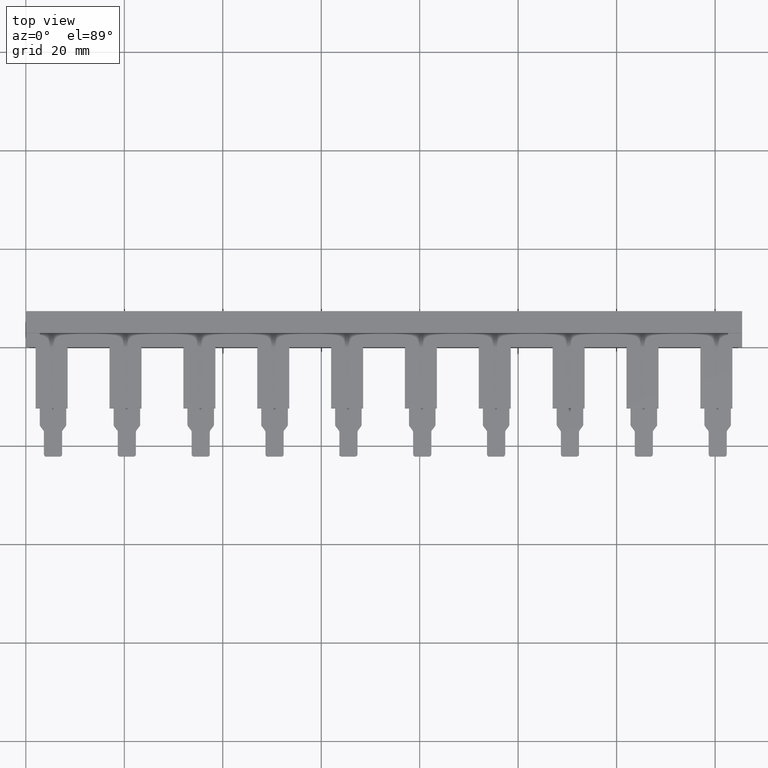
[diagram: clean part render]
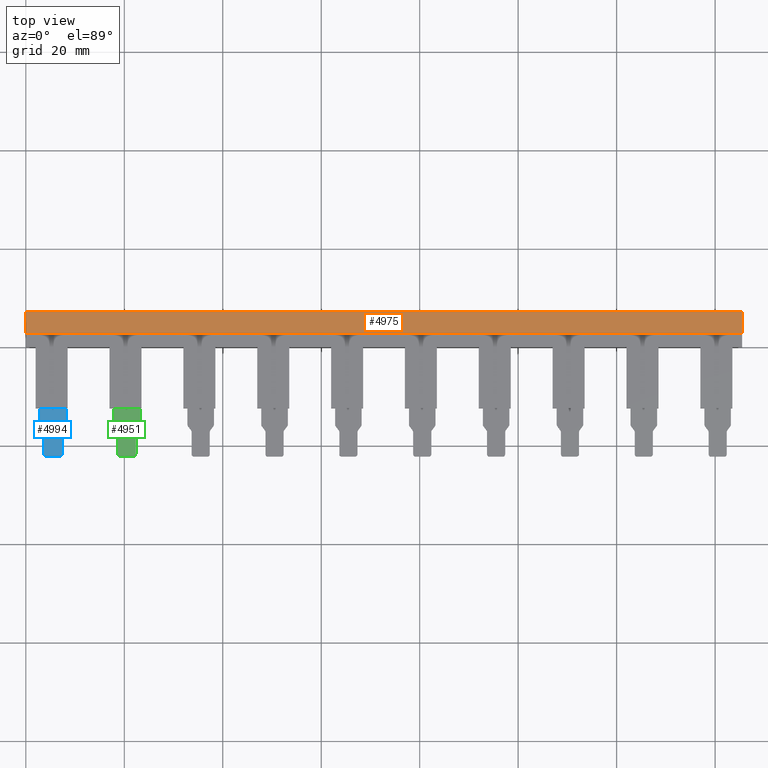
[diagram: same view with three faces highlighted in distinct colors, each labeled with its STEP entity id]
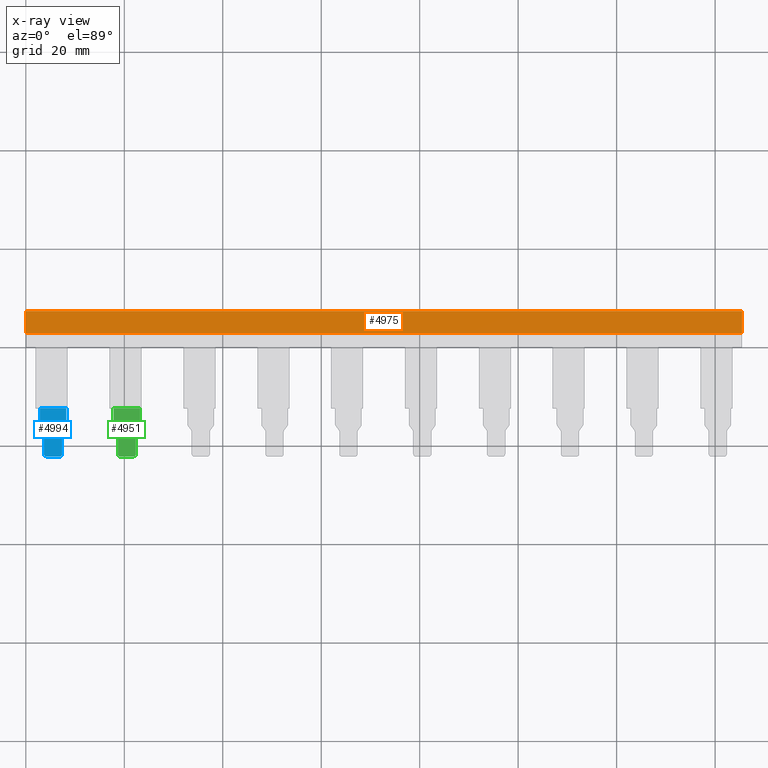
[diagram: x-ray of the same camera — body ghosted, the three highlighted faces saturated]
A machine part, top view with three faces highlighted in distinct colors.
The next image is the same camera in x-ray (body ghosted, the three faces saturated) — at least one of them is partly hidden behind the body in this view.
Their STEP definitions:

[orange] entity #4975 — the highlighted planar face has unit normal (0, 0, 1).
#25 = AXIS2_PLACEMENT_3D ( 'NONE', #2324, #2357, #2309 ) ;
#195 = VECTOR ( 'NONE', #2323, 1000.000000000000000 ) ;
#204 = VECTOR ( 'NONE', #3160, 1000.000000000000000 ) ;
#242 = VECTOR ( 'NONE', #3255, 1000.000000000000000 ) ;
#259 = VECTOR ( 'NONE', #3330, 1000.000000000000000 ) ;
#1004 = EDGE_LOOP ( 'NONE', ( #4275, #4335, #4306, #4290 ) ) ;
#1553 = CARTESIAN_POINT ( 'NONE',  ( 0.0000000000000000000, 7.300000000000000700, 4.799999999999999800 ) ) ;
#1605 = CARTESIAN_POINT ( 'NONE',  ( 145.5000000000000000, 2.799999999999996700, 4.799999999999999800 ) ) ;
#1627 = CARTESIAN_POINT ( 'NONE',  ( 0.0000000000000000000, 2.799999999999996700, 4.799999999999999800 ) ) ;
#1630 = CARTESIAN_POINT ( 'NONE',  ( 145.5000000000000000, 7.300000000000000700, 4.799999999999999800 ) ) ;
#2248 = LINE ( 'NONE', #2258, #195 ) ;
#2258 = CARTESIAN_POINT ( 'NONE',  ( 40.50000000000000000, 7.300000000000000700, 4.799999999999999800 ) ) ;
#2309 = DIRECTION ( 'NONE',  ( 1.000000000000000000, 0.0000000000000000000, -0.0000000000000000000 ) ) ;
#2323 = DIRECTION ( 'NONE',  ( -1.000000000000000000, 0.0000000000000000000, 0.0000000000000000000 ) ) ;
#2324 = CARTESIAN_POINT ( 'NONE',  ( 40.50000000000000000, 7.300000000000000700, 4.799999999999999800 ) ) ;
#2336 = PLANE ( 'NONE',  #25 ) ;
#2348 = FACE_OUTER_BOUND ( 'NONE', #1004, .T. ) ;
#2357 = DIRECTION ( 'NONE',  ( 0.0000000000000000000, 0.0000000000000000000, 1.000000000000000000 ) ) ;
#3153 = LINE ( 'NONE', #3171, #204 ) ;
#3160 = DIRECTION ( 'NONE',  ( 1.000000000000000000, 0.0000000000000000000, 0.0000000000000000000 ) ) ;
#3171 = CARTESIAN_POINT ( 'NONE',  ( 15.00000000000000000, 2.799999999999996700, 4.799999999999999800 ) ) ;
#3255 = DIRECTION ( 'NONE',  ( -2.409338161078896300E-017, -1.000000000000000000, 0.0000000000000000000 ) ) ;
#3262 = LINE ( 'NONE', #3268, #242 ) ;
#3268 = CARTESIAN_POINT ( 'NONE',  ( 0.0000000000000000000, 7.300000000000000700, 4.799999999999999800 ) ) ;
#3312 = LINE ( 'NONE', #3329, #259 ) ;
#3329 = CARTESIAN_POINT ( 'NONE',  ( 145.5000000000000000, 2.799999999999996700, 4.799999999999999800 ) ) ;
#3330 = DIRECTION ( 'NONE',  ( -7.709882115452468300E-016, 1.000000000000000000, 0.0000000000000000000 ) ) ;
#4275 = ORIENTED_EDGE ( 'NONE', *, *, #5141, .T. ) ;
#4290 = ORIENTED_EDGE ( 'NONE', *, *, #5165, .T. ) ;
#4306 = ORIENTED_EDGE ( 'NONE', *, *, #5148, .T. ) ;
#4335 = ORIENTED_EDGE ( 'NONE', *, *, #5188, .T. ) ;
#4589 = VERTEX_POINT ( 'NONE', #1553 ) ;
#4644 = VERTEX_POINT ( 'NONE', #1630 ) ;
#4653 = VERTEX_POINT ( 'NONE', #1627 ) ;
#4654 = VERTEX_POINT ( 'NONE', #1605 ) ;
#4975 = ADVANCED_FACE ( 'NONE', ( #2348 ), #2336, .T. ) ;
#5141 = EDGE_CURVE ( 'NONE', #4653, #4654, #3153, .T. ) ;
#5148 = EDGE_CURVE ( 'NONE', #4644, #4589, #2248, .T. ) ;
#5165 = EDGE_CURVE ( 'NONE', #4589, #4653, #3262, .T. ) ;
#5188 = EDGE_CURVE ( 'NONE', #4654, #4644, #3312, .T. ) ;

[blue] entity #4994 — the highlighted planar face has unit normal (-0, 0, -1).
#114 = AXIS2_PLACEMENT_3D ( 'NONE', #2449, #2455, #2441 ) ;
#385 = AXIS2_PLACEMENT_3D ( 'NONE', #3826, #3847, #3846 ) ;
#394 = VECTOR ( 'NONE', #3731, 1000.000000000000000 ) ;
#414 = CIRCLE ( 'NONE', #385, 0.4999999999998894200 ) ;
#422 = VECTOR ( 'NONE', #3803, 1000.000000000000000 ) ;
#428 = VECTOR ( 'NONE', #3738, 1000.000000000000000 ) ;
#441 = AXIS2_PLACEMENT_3D ( 'NONE', #3890, #3868, #3877 ) ;
#445 = CIRCLE ( 'NONE', #448, 0.4999999999999770200 ) ;
#448 = AXIS2_PLACEMENT_3D ( 'NONE', #3881, #3861, #3895 ) ;
#450 = CIRCLE ( 'NONE', #491, 0.4999999999999783500 ) ;
#452 = VECTOR ( 'NONE', #3834, 1000.000000000000000 ) ;
#455 = AXIS2_PLACEMENT_3D ( 'NONE', #3863, #3857, #3872 ) ;
#463 = CIRCLE ( 'NONE', #478, 0.5000000000000338600 ) ;
#472 = VECTOR ( 'NONE', #3860, 1000.000000000000000 ) ;
#476 = VECTOR ( 'NONE', #3839, 1000.000000000000000 ) ;
#477 = CIRCLE ( 'NONE', #441, 0.5000000000000784900 ) ;
#478 = AXIS2_PLACEMENT_3D ( 'NONE', #3938, #3927, #3912 ) ;
#479 = CIRCLE ( 'NONE', #455, 0.4999999999998894200 ) ;
#485 = VECTOR ( 'NONE', #3880, 1000.000000000000100 ) ;
#491 = AXIS2_PLACEMENT_3D ( 'NONE', #3893, #3858, #3870 ) ;
#570 = VECTOR ( 'NONE', #4112, 1000.000000000000000 ) ;
#1040 = EDGE_LOOP ( 'NONE', ( #1966, #2013, #1982, #1954, #1934, #2025, #1984, #2042, #1971, #1932, #1973, #1939, #2026, #1936 ) ) ;
#1615 = CARTESIAN_POINT ( 'NONE',  ( 3.575000000000561100, -16.86666666666704400, 2.949999999998415700 ) ) ;
#1667 = CARTESIAN_POINT ( 'NONE',  ( 2.925000000000415000, -16.00000000000053300, 2.949999999998440500 ) ) ;
#1687 = CARTESIAN_POINT ( 'NONE',  ( 3.675000000000629100, -17.16666666666713700, 2.949999999998390400 ) ) ;
#1698 = CARTESIAN_POINT ( 'NONE',  ( 2.825000000000410500, -15.70000000000045900, 2.949999999998444500 ) ) ;
#1701 = CARTESIAN_POINT ( 'NONE',  ( 7.465000000001314400, -16.86666666666664200, 2.949999999998091500 ) ) ;
#1708 = CARTESIAN_POINT ( 'NONE',  ( 6.865000000001626500, -22.19999999999998500, 2.949999999998138100 ) ) ;
#1709 = CARTESIAN_POINT ( 'NONE',  ( 3.675000000000518100, -21.70000000000029800, 2.949999999998345100 ) ) ;
#1741 = CARTESIAN_POINT ( 'NONE',  ( 2.825000000000410500, -12.40000000000000400, 2.949999999998447600 ) ) ;
#1742 = CARTESIAN_POINT ( 'NONE',  ( 8.215000000001589700, -15.70000000000001500, 2.949999999998034200 ) ) ;
#1751 = CARTESIAN_POINT ( 'NONE',  ( 8.115000000001579400, -16.00000000000011000, 2.949999999998067100 ) ) ;
#1757 = CARTESIAN_POINT ( 'NONE',  ( 7.365000000001349400, -17.16666666666669300, 2.949999999998099000 ) ) ;
#1782 = CARTESIAN_POINT ( 'NONE',  ( 8.215000000001589700, -12.40000000000000200, 2.949999999998034200 ) ) ;
#1793 = CARTESIAN_POINT ( 'NONE',  ( 7.365000000001460400, -21.69999999999985400, 2.949999999998099900 ) ) ;
#1801 = CARTESIAN_POINT ( 'NONE',  ( 4.175000000000372900, -22.19999999999993900, 2.949999999998345100 ) ) ;
#1932 = ORIENTED_EDGE ( 'NONE', *, *, #5319, .T. ) ;
#1934 = ORIENTED_EDGE ( 'NONE', *, *, #5344, .F. ) ;
#1936 = ORIENTED_EDGE ( 'NONE', *, *, #5331, .T. ) ;
#1939 = ORIENTED_EDGE ( 'NONE', *, *, #5440, .T. ) ;
#1954 = ORIENTED_EDGE ( 'NONE', *, *, #5317, .F. ) ;
#1966 = ORIENTED_EDGE ( 'NONE', *, *, #5376, .T. ) ;
#1971 = ORIENTED_EDGE ( 'NONE', *, *, #5357, .F. ) ;
#1973 = ORIENTED_EDGE ( 'NONE', *, *, #5346, .T. ) ;
#1982 = ORIENTED_EDGE ( 'NONE', *, *, #5359, .F. ) ;
#1984 = ORIENTED_EDGE ( 'NONE', *, *, #5364, .T. ) ;
#2013 = ORIENTED_EDGE ( 'NONE', *, *, #5362, .F. ) ;
#2025 = ORIENTED_EDGE ( 'NONE', *, *, #5356, .F. ) ;
#2026 = ORIENTED_EDGE ( 'NONE', *, *, #5366, .F. ) ;
#2042 = ORIENTED_EDGE ( 'NONE', *, *, #5369, .T. ) ;
#2415 = FACE_OUTER_BOUND ( 'NONE', #1040, .T. ) ;
#2441 = DIRECTION ( 'NONE',  ( -1.000000000000000000, 0.0000000000000000000, 7.679967772844520400E-014 ) ) ;
#2445 = PLANE ( 'NONE',  #114 ) ;
#2449 = CARTESIAN_POINT ( 'NONE',  ( 8.715000000001644800, 0.9500000000000934400, 2.949999999997995600 ) ) ;
#2455 = DIRECTION ( 'NONE',  ( -7.679967772844520400E-014, 0.0000000000000000000, -1.000000000000000000 ) ) ;
#3731 = DIRECTION ( 'NONE',  ( 0.0000000000000000000, 1.000000000000000000, -0.0000000000000000000 ) ) ;
#3735 = CARTESIAN_POINT ( 'NONE',  ( 8.215000000001589700, -17.35000000000009700, 2.949999999998034200 ) ) ;
#3738 = DIRECTION ( 'NONE',  ( -1.000000000000000000, 0.0000000000000000000, 7.679967772844520400E-014 ) ) ;
#3744 = LINE ( 'NONE', #3735, #394 ) ;
#3748 = CARTESIAN_POINT ( 'NONE',  ( 8.715000000001644800, -22.19999999999974300, 2.949999999997995600 ) ) ;
#3760 = LINE ( 'NONE', #3748, #428 ) ;
#3779 = LINE ( 'NONE', #3804, #422 ) ;
#3803 = DIRECTION ( 'NONE',  ( 0.6000000000001557400, -0.7999999999998831400, -0.0000000000000000000 ) ) ;
#3804 = CARTESIAN_POINT ( 'NONE',  ( 2.925000000000399500, -16.00000000000053600, 2.949999999998440500 ) ) ;
#3826 = CARTESIAN_POINT ( 'NONE',  ( 6.865000000001626500, -21.69999999999985400, 2.949999999998138100 ) ) ;
#3831 = LINE ( 'NONE', #3833, #452 ) ;
#3833 = CARTESIAN_POINT ( 'NONE',  ( 7.365000000001349400, 0.9500000000000934400, 2.949999999998099000 ) ) ;
#3834 = DIRECTION ( 'NONE',  ( -0.0000000000000000000, -1.000000000000000000, -0.0000000000000000000 ) ) ;
#3837 = LINE ( 'NONE', #3838, #476 ) ;
#3838 = CARTESIAN_POINT ( 'NONE',  ( 8.499999999999913000, -12.40000000000000200, 2.949999999998012000 ) ) ;
#3839 = DIRECTION ( 'NONE',  ( -1.000000000000000000, -2.668805347656626200E-016, 7.679967772844520400E-014 ) ) ;
#3846 = DIRECTION ( 'NONE',  ( 1.000000000000000000, 0.0000000000000000000, -7.719519468098499300E-014 ) ) ;
#3847 = DIRECTION ( 'NONE',  ( -7.679967772844520400E-014, -0.0000000000000000000, -1.000000000000000000 ) ) ;
#3857 = DIRECTION ( 'NONE',  ( -0.0000000000000000000, -0.0000000000000000000, -1.000000000000000000 ) ) ;
#3858 = DIRECTION ( 'NONE',  ( -0.0000000000000000000, -0.0000000000000000000, -1.000000000000000000 ) ) ;
#3860 = DIRECTION ( 'NONE',  ( 0.0000000000000000000, 1.000000000000000000, 0.0000000000000000000 ) ) ;
#3861 = DIRECTION ( 'NONE',  ( -7.679967772844520400E-014, -0.0000000000000000000, -1.000000000000000000 ) ) ;
#3862 = CARTESIAN_POINT ( 'NONE',  ( 3.374586302484610600, -22.32055159668577100, 2.949999999998093300 ) ) ;
#3863 = CARTESIAN_POINT ( 'NONE',  ( 4.175000000000372900, -21.70000000000029800, 2.949999999998345100 ) ) ;
#3868 = DIRECTION ( 'NONE',  ( -7.679967772844520400E-014, -0.0000000000000000000, -1.000000000000000000 ) ) ;
#3870 = DIRECTION ( 'NONE',  ( -1.000000000000000000, 0.0000000000000000000, 0.0000000000000000000 ) ) ;
#3871 = CARTESIAN_POINT ( 'NONE',  ( 3.675000000000608200, 0.9500000000000934400, 2.949999999998382800 ) ) ;
#3872 = DIRECTION ( 'NONE',  ( -1.000000000000000000, 0.0000000000000000000, 0.0000000000000000000 ) ) ;
#3875 = LINE ( 'NONE', #3871, #472 ) ;
#3877 = DIRECTION ( 'NONE',  ( 1.000000000000000000, -6.938893903906139000E-015, -7.719519468095579900E-014 ) ) ;
#3879 = LINE ( 'NONE', #3862, #485 ) ;
#3880 = DIRECTION ( 'NONE',  ( 0.6000000000002213600, 0.7999999999998339600, -0.0000000000000000000 ) ) ;
#3881 = CARTESIAN_POINT ( 'NONE',  ( 7.715000000001643000, -15.70000000000001500, 2.949999999998072400 ) ) ;
#3890 = CARTESIAN_POINT ( 'NONE',  ( 7.865000000001405300, -17.16666666666669300, 2.949999999998060800 ) ) ;
#3893 = CARTESIAN_POINT ( 'NONE',  ( 3.325000000000355400, -15.70000000000045900, 2.949999999998440500 ) ) ;
#3895 = DIRECTION ( 'NONE',  ( 1.000000000000000000, 0.0000000000000000000, -7.719519468097146200E-014 ) ) ;
#3912 = DIRECTION ( 'NONE',  ( -1.000000000000000000, 0.0000000000000000000, 0.0000000000000000000 ) ) ;
#3927 = DIRECTION ( 'NONE',  ( -0.0000000000000000000, -0.0000000000000000000, -1.000000000000000000 ) ) ;
#3938 = CARTESIAN_POINT ( 'NONE',  ( 3.175000000000594000, -17.16666666666713700, 2.949999999998390400 ) ) ;
#4072 = LINE ( 'NONE', #4105, #570 ) ;
#4105 = CARTESIAN_POINT ( 'NONE',  ( 2.825000000000410500, -15.70000000000045900, 2.949999999998447600 ) ) ;
#4112 = DIRECTION ( 'NONE',  ( -0.0000000000000000000, -1.000000000000000000, -0.0000000000000000000 ) ) ;
#4658 = VERTEX_POINT ( 'NONE', #1615 ) ;
#4662 = VERTEX_POINT ( 'NONE', #1667 ) ;
#4674 = VERTEX_POINT ( 'NONE', #1708 ) ;
#4686 = VERTEX_POINT ( 'NONE', #1687 ) ;
#4688 = VERTEX_POINT ( 'NONE', #1709 ) ;
#4706 = VERTEX_POINT ( 'NONE', #1698 ) ;
#4712 = VERTEX_POINT ( 'NONE', #1701 ) ;
#4736 = VERTEX_POINT ( 'NONE', #1742 ) ;
#4752 = VERTEX_POINT ( 'NONE', #1741 ) ;
#4763 = VERTEX_POINT ( 'NONE', #1801 ) ;
#4769 = VERTEX_POINT ( 'NONE', #1782 ) ;
#4772 = VERTEX_POINT ( 'NONE', #1793 ) ;
#4784 = VERTEX_POINT ( 'NONE', #1751 ) ;
#4807 = VERTEX_POINT ( 'NONE', #1757 ) ;
#4994 = ADVANCED_FACE ( 'NONE', ( #2415 ), #2445, .F. ) ;
#5317 = EDGE_CURVE ( 'NONE', #4674, #4763, #3760, .T. ) ;
#5319 = EDGE_CURVE ( 'NONE', #4736, #4769, #3744, .T. ) ;
#5331 = EDGE_CURVE ( 'NONE', #4662, #4658, #3779, .T. ) ;
#5344 = EDGE_CURVE ( 'NONE', #4772, #4674, #414, .T. ) ;
#5346 = EDGE_CURVE ( 'NONE', #4769, #4752, #3837, .T. ) ;
#5356 = EDGE_CURVE ( 'NONE', #4807, #4772, #3831, .T. ) ;
#5357 = EDGE_CURVE ( 'NONE', #4736, #4784, #445, .T. ) ;
#5359 = EDGE_CURVE ( 'NONE', #4763, #4688, #479, .T. ) ;
#5362 = EDGE_CURVE ( 'NONE', #4688, #4686, #3875, .T. ) ;
#5364 = EDGE_CURVE ( 'NONE', #4807, #4712, #477, .T. ) ;
#5366 = EDGE_CURVE ( 'NONE', #4662, #4706, #450, .T. ) ;
#5369 = EDGE_CURVE ( 'NONE', #4712, #4784, #3879, .T. ) ;
#5376 = EDGE_CURVE ( 'NONE', #4658, #4686, #463, .T. ) ;
#5440 = EDGE_CURVE ( 'NONE', #4752, #4706, #4072, .T. ) ;

[green] entity #4951 — the highlighted planar face has unit normal (-0, 0, -1).
#23 = AXIS2_PLACEMENT_3D ( 'NONE', #2213, #2233, #2207 ) ;
#324 = AXIS2_PLACEMENT_3D ( 'NONE', #3572, #3558, #3569 ) ;
#328 = CIRCLE ( 'NONE', #324, 0.5000000000000768300 ) ;
#333 = AXIS2_PLACEMENT_3D ( 'NONE', #3571, #3562, #3587 ) ;
#347 = VECTOR ( 'NONE', #3566, 1000.000000000000000 ) ;
#351 = CIRCLE ( 'NONE', #333, 0.4999999999998894200 ) ;
#379 = VECTOR ( 'NONE', #3725, 1000.000000000000000 ) ;
#391 = AXIS2_PLACEMENT_3D ( 'NONE', #3753, #3747, #3734 ) ;
#407 = CIRCLE ( 'NONE', #415, 0.4999999999998894200 ) ;
#411 = VECTOR ( 'NONE', #3775, 1000.000000000000000 ) ;
#415 = AXIS2_PLACEMENT_3D ( 'NONE', #3690, #3699, #3691 ) ;
#424 = VECTOR ( 'NONE', #3652, 1000.000000000000100 ) ;
#426 = CIRCLE ( 'NONE', #391, 0.5000000000000350800 ) ;
#431 = VECTOR ( 'NONE', #3778, 1000.000000000000000 ) ;
#443 = VECTOR ( 'NONE', #3842, 1000.000000000000000 ) ;
#444 = CIRCLE ( 'NONE', #471, 0.4999999999999796300 ) ;
#462 = VECTOR ( 'NONE', #3925, 1000.000000000000000 ) ;
#471 = AXIS2_PLACEMENT_3D ( 'NONE', #3825, #3853, #3814 ) ;
#481 = VECTOR ( 'NONE', #3939, 1000.000000000000000 ) ;
#484 = AXIS2_PLACEMENT_3D ( 'NONE', #3929, #3905, #3921 ) ;
#487 = CIRCLE ( 'NONE', #484, 0.4999999999999796300 ) ;
#973 = EDGE_LOOP ( 'NONE', ( #1974, #4557, #4573, #4558, #4570, #4559, #4544, #4532, #1977, #4555, #4561, #4553, #4512, #4522 ) ) ;
#1661 = CARTESIAN_POINT ( 'NONE',  ( 18.67500000000051600, -21.70000000000029400, 2.949999999998345100 ) ) ;
#1668 = CARTESIAN_POINT ( 'NONE',  ( 17.92500000000041300, -16.00000000000052900, 2.949999999998440500 ) ) ;
#1683 = CARTESIAN_POINT ( 'NONE',  ( 18.57500000000056400, -16.86666666666704000, 2.949999999998415700 ) ) ;
#1699 = CARTESIAN_POINT ( 'NONE',  ( 17.82500000000055000, -12.40000000000000200, 2.949999999998447600 ) ) ;
#1707 = CARTESIAN_POINT ( 'NONE',  ( 23.21500000000162300, -12.40000000000000200, 2.949999999998034200 ) ) ;
#1710 = CARTESIAN_POINT ( 'NONE',  ( 17.82500000000047900, -15.70000000000045600, 2.949999999998440500 ) ) ;
#1719 = CARTESIAN_POINT ( 'NONE',  ( 19.17500000000037700, -22.19999999999993500, 2.949999999998345100 ) ) ;
#1722 = CARTESIAN_POINT ( 'NONE',  ( 22.36500000000145900, -21.69999999999985000, 2.949999999998099900 ) ) ;
#1723 = CARTESIAN_POINT ( 'NONE',  ( 23.11500000000157900, -16.00000000000010300, 2.949999999998067100 ) ) ;
#1731 = CARTESIAN_POINT ( 'NONE',  ( 23.21500000000160600, -15.70000000000001200, 2.949999999998034200 ) ) ;
#1748 = CARTESIAN_POINT ( 'NONE',  ( 18.67500000000063000, -17.16666666666713300, 2.949999999998390400 ) ) ;
#1754 = CARTESIAN_POINT ( 'NONE',  ( 22.36500000000134800, -17.16666666666668900, 2.949999999998099000 ) ) ;
#1772 = CARTESIAN_POINT ( 'NONE',  ( 21.86500000000162600, -22.19999999999997800, 2.949999999998138100 ) ) ;
#1791 = CARTESIAN_POINT ( 'NONE',  ( 22.46500000000138200, -16.86666666666656800, 2.949999999998091900 ) ) ;
#1974 = ORIENTED_EDGE ( 'NONE', *, *, #5313, .T. ) ;
#1977 = ORIENTED_EDGE ( 'NONE', *, *, #5353, .F. ) ;
#2207 = DIRECTION ( 'NONE',  ( -1.000000000000000000, 0.0000000000000000000, 7.679967772844520400E-014 ) ) ;
#2213 = CARTESIAN_POINT ( 'NONE',  ( 23.71500000000164500, 0.9500000000000974300, 2.949999999997995600 ) ) ;
#2231 = PLANE ( 'NONE',  #23 ) ;
#2233 = DIRECTION ( 'NONE',  ( -7.679967772844520400E-014, 0.0000000000000000000, -1.000000000000000000 ) ) ;
#2243 = FACE_OUTER_BOUND ( 'NONE', #973, .T. ) ;
#3558 = DIRECTION ( 'NONE',  ( -7.679967772844520400E-014, -0.0000000000000000000, -1.000000000000000000 ) ) ;
#3562 = DIRECTION ( 'NONE',  ( -0.0000000000000000000, -0.0000000000000000000, -1.000000000000000000 ) ) ;
#3564 = LINE ( 'NONE', #3565, #347 ) ;
#3565 = CARTESIAN_POINT ( 'NONE',  ( 17.92500000000039900, -16.00000000000053300, 2.949999999998440500 ) ) ;
#3566 = DIRECTION ( 'NONE',  ( 0.6000000000001557400, -0.7999999999998831400, -0.0000000000000000000 ) ) ;
#3569 = DIRECTION ( 'NONE',  ( 1.000000000000000000, -6.938893903906161800E-015, -7.719519468095605100E-014 ) ) ;
#3571 = CARTESIAN_POINT ( 'NONE',  ( 19.17500000000037700, -21.70000000000029400, 2.949999999998345100 ) ) ;
#3572 = CARTESIAN_POINT ( 'NONE',  ( 22.86500000000140500, -17.16666666666668900, 2.949999999998060800 ) ) ;
#3587 = DIRECTION ( 'NONE',  ( -1.000000000000000000, 0.0000000000000000000, 0.0000000000000000000 ) ) ;
#3651 = LINE ( 'NONE', #3673, #424 ) ;
#3652 = DIRECTION ( 'NONE',  ( 0.6000000000002213600, 0.7999999999998339600, -0.0000000000000000000 ) ) ;
#3673 = CARTESIAN_POINT ( 'NONE',  ( 18.37458630248460900, -22.32055159668576700, 2.949999999998093300 ) ) ;
#3690 = CARTESIAN_POINT ( 'NONE',  ( 21.86500000000162600, -21.69999999999985000, 2.949999999998138100 ) ) ;
#3691 = DIRECTION ( 'NONE',  ( 1.000000000000000000, 0.0000000000000000000, -7.719519468098499300E-014 ) ) ;
#3699 = DIRECTION ( 'NONE',  ( -7.679967772844520400E-014, -0.0000000000000000000, -1.000000000000000000 ) ) ;
#3723 = LINE ( 'NONE', #3730, #379 ) ;
#3725 = DIRECTION ( 'NONE',  ( 0.0000000000000000000, 1.000000000000000000, 0.0000000000000000000 ) ) ;
#3730 = CARTESIAN_POINT ( 'NONE',  ( 18.67500000000060800, 0.9500000000000974300, 2.949999999998382800 ) ) ;
#3734 = DIRECTION ( 'NONE',  ( -1.000000000000000000, 0.0000000000000000000, 0.0000000000000000000 ) ) ;
#3747 = DIRECTION ( 'NONE',  ( -0.0000000000000000000, -0.0000000000000000000, -1.000000000000000000 ) ) ;
#3753 = CARTESIAN_POINT ( 'NONE',  ( 18.17500000000059400, -17.16666666666713300, 2.949999999998390400 ) ) ;
#3773 = LINE ( 'NONE', #3774, #411 ) ;
#3774 = CARTESIAN_POINT ( 'NONE',  ( 23.71500000000164500, -22.19999999999974000, 2.949999999997995600 ) ) ;
#3775 = DIRECTION ( 'NONE',  ( -1.000000000000000000, 0.0000000000000000000, 7.679967772844520400E-014 ) ) ;
#3778 = DIRECTION ( 'NONE',  ( -0.0000000000000000000, -1.000000000000000000, -0.0000000000000000000 ) ) ;
#3796 = CARTESIAN_POINT ( 'NONE',  ( 22.36500000000134800, 0.9500000000000974300, 2.949999999998099000 ) ) ;
#3811 = LINE ( 'NONE', #3796, #431 ) ;
#3814 = DIRECTION ( 'NONE',  ( 1.000000000000000000, 0.0000000000000000000, -7.719519468097105900E-014 ) ) ;
#3825 = CARTESIAN_POINT ( 'NONE',  ( 22.71500000000164800, -15.70000000000001200, 2.949999999998072400 ) ) ;
#3842 = DIRECTION ( 'NONE',  ( -0.0000000000000000000, -1.000000000000000000, -0.0000000000000000000 ) ) ;
#3845 = LINE ( 'NONE', #3849, #443 ) ;
#3849 = CARTESIAN_POINT ( 'NONE',  ( 23.21500000000162300, 0.9500000000000974300, 2.949999999998034200 ) ) ;
#3853 = DIRECTION ( 'NONE',  ( -7.679967772844520400E-014, -0.0000000000000000000, -1.000000000000000000 ) ) ;
#3905 = DIRECTION ( 'NONE',  ( -0.0000000000000000000, -0.0000000000000000000, -1.000000000000000000 ) ) ;
#3921 = DIRECTION ( 'NONE',  ( -1.000000000000000000, 0.0000000000000000000, 0.0000000000000000000 ) ) ;
#3923 = LINE ( 'NONE', #3933, #462 ) ;
#3925 = DIRECTION ( 'NONE',  ( 0.0000000000000000000, 1.000000000000000000, 0.0000000000000000000 ) ) ;
#3929 = CARTESIAN_POINT ( 'NONE',  ( 18.32500000000035500, -15.70000000000045600, 2.949999999998440500 ) ) ;
#3930 = CARTESIAN_POINT ( 'NONE',  ( 17.00000000000029100, -12.40000000000000200, 2.949999999998511100 ) ) ;
#3932 = LINE ( 'NONE', #3930, #481 ) ;
#3933 = CARTESIAN_POINT ( 'NONE',  ( 17.82500000000055000, 0.9500000000000974300, 2.949999999998447600 ) ) ;
#3939 = DIRECTION ( 'NONE',  ( 1.000000000000000000, 0.0000000000000000000, -7.679967772844520400E-014 ) ) ;
#4512 = ORIENTED_EDGE ( 'NONE', *, *, #5377, .F. ) ;
#4522 = ORIENTED_EDGE ( 'NONE', *, *, #5267, .T. ) ;
#4532 = ORIENTED_EDGE ( 'NONE', *, *, #5296, .T. ) ;
#4544 = ORIENTED_EDGE ( 'NONE', *, *, #5255, .T. ) ;
#4553 = ORIENTED_EDGE ( 'NONE', *, *, #5373, .F. ) ;
#4555 = ORIENTED_EDGE ( 'NONE', *, *, #5352, .F. ) ;
#4557 = ORIENTED_EDGE ( 'NONE', *, *, #5325, .F. ) ;
#4558 = ORIENTED_EDGE ( 'NONE', *, *, #5341, .F. ) ;
#4559 = ORIENTED_EDGE ( 'NONE', *, *, #5342, .F. ) ;
#4561 = ORIENTED_EDGE ( 'NONE', *, *, #5379, .F. ) ;
#4570 = ORIENTED_EDGE ( 'NONE', *, *, #5311, .F. ) ;
#4573 = ORIENTED_EDGE ( 'NONE', *, *, #5263, .F. ) ;
#4659 = VERTEX_POINT ( 'NONE', #1683 ) ;
#4666 = VERTEX_POINT ( 'NONE', #1668 ) ;
#4683 = VERTEX_POINT ( 'NONE', #1707 ) ;
#4705 = VERTEX_POINT ( 'NONE', #1661 ) ;
#4709 = VERTEX_POINT ( 'NONE', #1699 ) ;
#4723 = VERTEX_POINT ( 'NONE', #1748 ) ;
#4740 = VERTEX_POINT ( 'NONE', #1722 ) ;
#4742 = VERTEX_POINT ( 'NONE', #1719 ) ;
#4746 = VERTEX_POINT ( 'NONE', #1731 ) ;
#4748 = VERTEX_POINT ( 'NONE', #1723 ) ;
#4751 = VERTEX_POINT ( 'NONE', #1710 ) ;
#4761 = VERTEX_POINT ( 'NONE', #1791 ) ;
#4779 = VERTEX_POINT ( 'NONE', #1772 ) ;
#4780 = VERTEX_POINT ( 'NONE', #1754 ) ;
#4951 = ADVANCED_FACE ( 'NONE', ( #2243 ), #2231, .F. ) ;
#5255 = EDGE_CURVE ( 'NONE', #4780, #4761, #328, .T. ) ;
#5263 = EDGE_CURVE ( 'NONE', #4742, #4705, #351, .T. ) ;
#5267 = EDGE_CURVE ( 'NONE', #4666, #4659, #3564, .T. ) ;
#5296 = EDGE_CURVE ( 'NONE', #4761, #4748, #3651, .T. ) ;
#5311 = EDGE_CURVE ( 'NONE', #4740, #4779, #407, .T. ) ;
#5313 = EDGE_CURVE ( 'NONE', #4659, #4723, #426, .T. ) ;
#5325 = EDGE_CURVE ( 'NONE', #4705, #4723, #3723, .T. ) ;
#5341 = EDGE_CURVE ( 'NONE', #4779, #4742, #3773, .T. ) ;
#5342 = EDGE_CURVE ( 'NONE', #4780, #4740, #3811, .T. ) ;
#5352 = EDGE_CURVE ( 'NONE', #4683, #4746, #3845, .T. ) ;
#5353 = EDGE_CURVE ( 'NONE', #4746, #4748, #444, .T. ) ;
#5373 = EDGE_CURVE ( 'NONE', #4751, #4709, #3923, .T. ) ;
#5377 = EDGE_CURVE ( 'NONE', #4666, #4751, #487, .T. ) ;
#5379 = EDGE_CURVE ( 'NONE', #4709, #4683, #3932, .T. ) ;